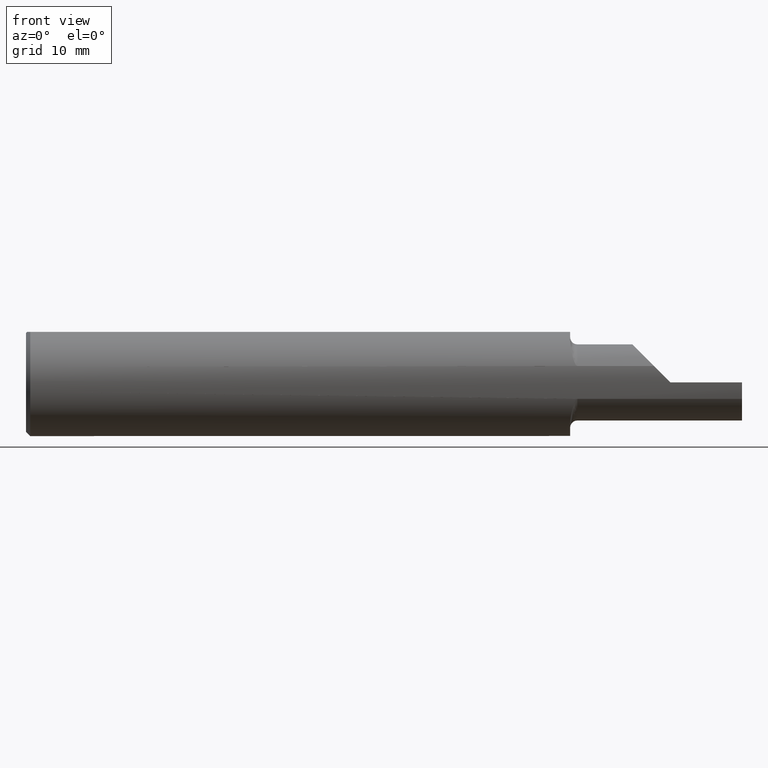
[diagram: clean part render]
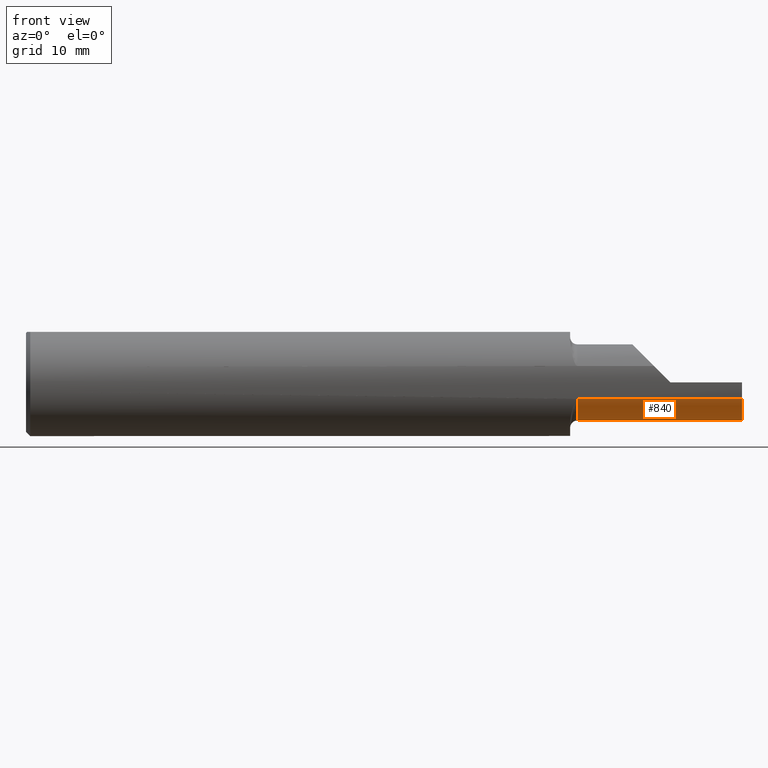
[diagram: same view with one face highlighted and labeled with its STEP entity id]
A machine part, front view. The second image highlights one B-rep face of the part: STEP entity #840.
In plain terms, the highlighted cylindrical surface (partial cylindrical patch) has radius 3.3782 mm, axis along (-1, -0, -0).
Its self-contained STEP definition (entity closure, byte-faithful):
#26 = DIRECTION ( 'NONE',  ( 0.000000000000000000, 0.000000000000000000, 1.000000000000000000 ) ) ;
#41 = CARTESIAN_POINT ( 'NONE',  ( 2.401951558677191567, -0.05835000000000021420, -0.1330000000000001181 ) ) ;
#61 = ORIENTED_EDGE ( 'NONE', *, *, #912, .F. ) ;
#77 = VERTEX_POINT ( 'NONE', #752 ) ;
#82 = DIRECTION ( 'NONE',  ( -1.000000000000000000, -0.000000000000000000, -0.000000000000000000 ) ) ;
#83 = AXIS2_PLACEMENT_3D ( 'NONE', #195, #190, #686 ) ;
#93 = VERTEX_POINT ( 'NONE', #41 ) ;
#166 = CYLINDRICAL_SURFACE ( 'NONE', #275, 0.1330000000000001736 ) ;
#190 = DIRECTION ( 'NONE',  ( 1.000000000000000000, 0.000000000000000000, 0.000000000000000000 ) ) ;
#195 = CARTESIAN_POINT ( 'NONE',  ( 2.500000000000000000, -0.05835000000000021420, 0.000000000000000000 ) ) ;
#197 = EDGE_LOOP ( 'NONE', ( #824, #785, #61, #225, #594 ) ) ;
#224 = CARTESIAN_POINT ( 'NONE',  ( 2.581520281605562683, -0.05835000000000004766, -0.1330000000000000626 ) ) ;
#225 = ORIENTED_EDGE ( 'NONE', *, *, #338, .T. ) ;
#275 = AXIS2_PLACEMENT_3D ( 'NONE', #793, #376, #26 ) ;
#287 = CARTESIAN_POINT ( 'NONE',  ( 2.153260140802780942, -0.1783697086546692234, -0.05730854678360303156 ) ) ;
#294 = CARTESIAN_POINT ( 'NONE',  ( 2.500000000000000000, -0.1783697086546688626, -0.05730854678360295523 ) ) ;
#321 = VERTEX_POINT ( 'NONE', #352 ) ;
#338 = EDGE_CURVE ( 'NONE', #736, #663, #916, .T. ) ;
#352 = CARTESIAN_POINT ( 'NONE',  ( 1.924999999999999822, -0.05835000000000019338, -0.1330000000000002014 ) ) ;
#365 = EDGE_CURVE ( 'NONE', #77, #93, #644, .T. ) ;
#376 = DIRECTION ( 'NONE',  ( -1.000000000000000000, -0.000000000000000000, -0.000000000000000000 ) ) ;
#388 = CARTESIAN_POINT ( 'NONE',  ( 1.900000000000000133, -0.05835000000000019338, -0.1330000000000001736 ) ) ;
#426 = DIRECTION ( 'NONE',  ( -1.000000000000000000, -0.000000000000000000, -0.000000000000000000 ) ) ;
#459 = EDGE_CURVE ( 'NONE', #93, #321, #802, .T. ) ;
#463 = VECTOR ( 'NONE', #82, 39.37007874015748143 ) ;
#476 = CIRCLE ( 'NONE', #83, 0.1330000000000001181 ) ;
#511 = FACE_OUTER_BOUND ( 'NONE', #197, .T. ) ;
#554 = EDGE_CURVE ( 'NONE', #321, #663, #580, .T. ) ;
#580 = CIRCLE ( 'NONE', #699, 0.1330000000000002014 ) ;
#594 = ORIENTED_EDGE ( 'NONE', *, *, #554, .F. ) ;
#603 = CARTESIAN_POINT ( 'NONE',  ( 1.924999999999999822, -0.05835000000000021420, 0.000000000000000000 ) ) ;
#644 = LINE ( 'NONE', #224, #755 ) ;
#663 = VERTEX_POINT ( 'NONE', #832 ) ;
#686 = DIRECTION ( 'NONE',  ( 0.000000000000000000, 1.797268416884382025E-15, 1.000000000000000000 ) ) ;
#699 = AXIS2_PLACEMENT_3D ( 'NONE', #603, #873, #798 ) ;
#736 = VERTEX_POINT ( 'NONE', #294 ) ;
#752 = CARTESIAN_POINT ( 'NONE',  ( 2.500000000000000000, -0.05835000000000004766, -0.1330000000000000626 ) ) ;
#755 = VECTOR ( 'NONE', #426, 39.37007874015748143 ) ;
#785 = ORIENTED_EDGE ( 'NONE', *, *, #365, .F. ) ;
#793 = CARTESIAN_POINT ( 'NONE',  ( 1.900000000000000133, -0.05835000000000021420, 0.000000000000000000 ) ) ;
#798 = DIRECTION ( 'NONE',  ( 0.000000000000000000, 0.000000000000000000, 1.000000000000000000 ) ) ;
#802 = LINE ( 'NONE', #388, #825 ) ;
#824 = ORIENTED_EDGE ( 'NONE', *, *, #459, .F. ) ;
#825 = VECTOR ( 'NONE', #885, 39.37007874015748143 ) ;
#832 = CARTESIAN_POINT ( 'NONE',  ( 1.924999999999999822, -0.1783697086546690014, -0.05730854678360349647 ) ) ;
#840 = ADVANCED_FACE ( 'NONE', ( #511 ), #166, .T. ) ;
#873 = DIRECTION ( 'NONE',  ( -1.000000000000000000, -0.000000000000000000, -0.000000000000000000 ) ) ;
#885 = DIRECTION ( 'NONE',  ( -1.000000000000000000, -0.000000000000000000, -0.000000000000000000 ) ) ;
#912 = EDGE_CURVE ( 'NONE', #736, #77, #476, .T. ) ;
#916 = LINE ( 'NONE', #287, #463 ) ;